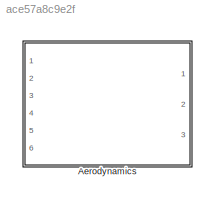
MODEL slx_ace57a8c9e2f
KIND library
CONFIG AbsTol = auto
CONFIG EnableMultiTasking = off
CONFIG FixedStep = auto
CONFIG MaxStep = auto
CONFIG MinStep = auto
CONFIG RelTol = 1e-3
CONFIG SampleTimeConstraint = Unconstrained
CONFIG Solver = VariableStepAuto
CONFIG SolverName = VariableStepAuto
CONFIG StartTime = 0.0
CONFIG StopTime = 10.0
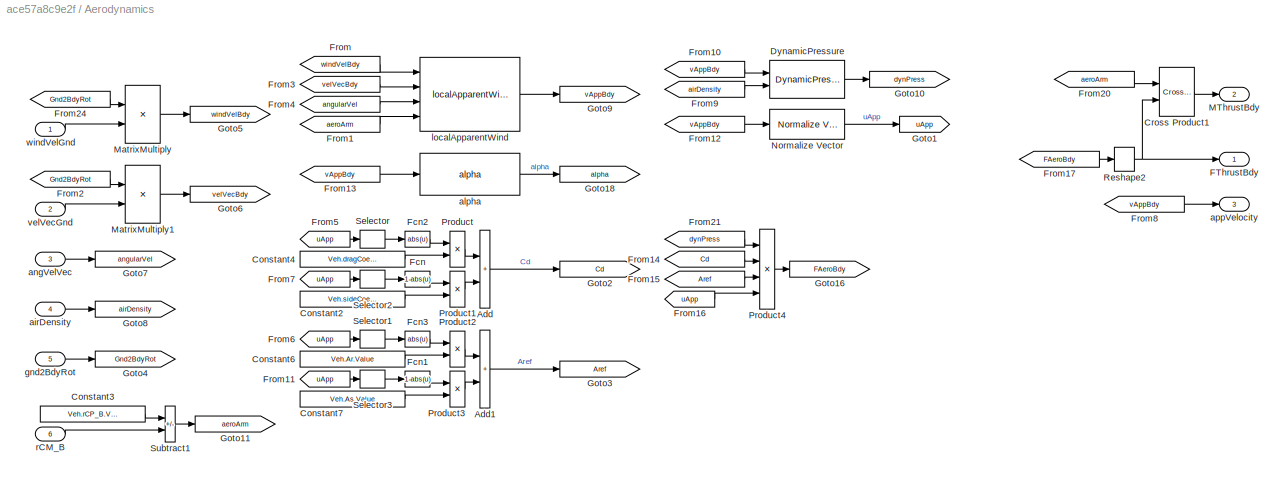
BLOCK [SubSystem] Aerodynamics
  Ports = [6, 3]
  RequestExecContextInheritance = off
BLOCK [Sum] Aerodynamics/Add
  IconShape = rectangular
  Ports = [2, 1]
BLOCK [Sum] Aerodynamics/Add1
  IconShape = rectangular
  Ports = [2, 1]
BLOCK [Constant] Aerodynamics/Constant2
  Value = Veh.sideCoef.Value
BLOCK [Constant] Aerodynamics/Constant3
  Value = Veh.rCP_B.Value
BLOCK [Constant] Aerodynamics/Constant4
  Value = Veh.dragCoef.Value
BLOCK [Constant] Aerodynamics/Constant6
  Value = Veh.Ar.Value
BLOCK [Constant] Aerodynamics/Constant7
  Value = Veh.As.Value
BLOCK [Reference] Aerodynamics/Cross Product1  REF=vrlib/Utilities/Cross Product
  Ports = [2, 1]
  SourceBlock = vrlib/Utilities/Cross Product
  SourceProductBaseCode = SL
  SourceType = Cross Product
BLOCK [Reference] Aerodynamics/DynamicPressure  REF=dynamicPressure_ul/DynamicPressure
  Ports = [2, 1]
  SourceBlock = dynamicPressure_ul/DynamicPressure
BLOCK [Outport] Aerodynamics/FThrustBdy
  VectorParamsAs1DForOutWhenUnconnected = off
BLOCK [Fcn] Aerodynamics/Fcn
  Expr = 1-abs(u)
BLOCK [Fcn] Aerodynamics/Fcn1
  Expr = 1-abs(u)
BLOCK [Fcn] Aerodynamics/Fcn2
  Expr = abs(u)
BLOCK [Fcn] Aerodynamics/Fcn3
  Expr = abs(u)
BLOCK [From] Aerodynamics/From
  GotoTag = windVelBdy
BLOCK [From] Aerodynamics/From1
  GotoTag = aeroArm
BLOCK [From] Aerodynamics/From10
  GotoTag = vAppBdy
BLOCK [From] Aerodynamics/From11
  GotoTag = uApp
BLOCK [From] Aerodynamics/From12
  GotoTag = vAppBdy
BLOCK [From] Aerodynamics/From13
  GotoTag = vAppBdy
BLOCK [From] Aerodynamics/From14
  GotoTag = Cd
BLOCK [From] Aerodynamics/From15
  GotoTag = Aref
BLOCK [From] Aerodynamics/From16
  GotoTag = uApp
BLOCK [From] Aerodynamics/From17
  GotoTag = FAeroBdy
BLOCK [From] Aerodynamics/From2
  GotoTag = Gnd2BdyRot
BLOCK [From] Aerodynamics/From20
  GotoTag = aeroArm
BLOCK [From] Aerodynamics/From21
  GotoTag = dynPress
BLOCK [From] Aerodynamics/From24
  GotoTag = Gnd2BdyRot
BLOCK [From] Aerodynamics/From3
  GotoTag = velVecBdy
BLOCK [From] Aerodynamics/From4
  GotoTag = angularVel
BLOCK [From] Aerodynamics/From5
  GotoTag = uApp
BLOCK [From] Aerodynamics/From6
  GotoTag = uApp
BLOCK [From] Aerodynamics/From7
  GotoTag = uApp
BLOCK [From] Aerodynamics/From8
  GotoTag = vAppBdy
BLOCK [From] Aerodynamics/From9
  GotoTag = airDensity
BLOCK [Goto] Aerodynamics/Goto1
  GotoTag = uApp
BLOCK [Goto] Aerodynamics/Goto10
  GotoTag = dynPress
BLOCK [Goto] Aerodynamics/Goto11
  GotoTag = aeroArm
BLOCK [Goto] Aerodynamics/Goto16
  GotoTag = FAeroBdy
BLOCK [Goto] Aerodynamics/Goto18
  GotoTag = alpha
BLOCK [Goto] Aerodynamics/Goto2
  GotoTag = Cd
BLOCK [Goto] Aerodynamics/Goto3
  GotoTag = Aref
BLOCK [Goto] Aerodynamics/Goto4
  GotoTag = Gnd2BdyRot
BLOCK [Goto] Aerodynamics/Goto5
  GotoTag = windVelBdy
BLOCK [Goto] Aerodynamics/Goto6
  GotoTag = velVecBdy
BLOCK [Goto] Aerodynamics/Goto7
  GotoTag = angularVel
BLOCK [Goto] Aerodynamics/Goto8
  GotoTag = airDensity
BLOCK [Goto] Aerodynamics/Goto9
  GotoTag = vAppBdy
BLOCK [Outport] Aerodynamics/MThrustBdy
  Port = 2
  VectorParamsAs1DForOutWhenUnconnected = off
BLOCK [Product] Aerodynamics/MatrixMultiply
  Multiplication = Matrix(*)
  Ports = [2, 1]
BLOCK [Product] Aerodynamics/MatrixMultiply1
  Multiplication = Matrix(*)
  Ports = [2, 1]
BLOCK [Reference] Aerodynamics/Normalize Vector  REF=vrlib/Utilities/Normalize Vector
  Ports = [1, 1]
  SourceBlock = vrlib/Utilities/Normalize Vector
  SourceProductBaseCode = SL
  SourceType = Normalize Vector
BLOCK [Product] Aerodynamics/Product
  Ports = [2, 1]
BLOCK [Product] Aerodynamics/Product1
  Ports = [2, 1]
BLOCK [Product] Aerodynamics/Product2
  Ports = [2, 1]
BLOCK [Product] Aerodynamics/Product3
  Ports = [2, 1]
BLOCK [Product] Aerodynamics/Product4
  Inputs = 4
  Ports = [4, 1]
BLOCK [Reshape] Aerodynamics/Reshape2
  OutputDimensionality = Column vector (2-D)
  Ports = [1, 1]
BLOCK [Selector] Aerodynamics/Selector
  IndexOptions = Index vector (dialog)
  Indices = 1
  InputPortWidth = 3
  OutputSizes = 1
  Ports = [1, 1]
BLOCK [Selector] Aerodynamics/Selector1
  IndexOptions = Index vector (dialog)
  Indices = 1
  InputPortWidth = 3
  OutputSizes = 1
  Ports = [1, 1]
BLOCK [Selector] Aerodynamics/Selector2
  IndexOptions = Index vector (dialog)
  Indices = 1
  InputPortWidth = 3
  OutputSizes = 1
  Ports = [1, 1]
BLOCK [Selector] Aerodynamics/Selector3
  IndexOptions = Index vector (dialog)
  Indices = 1
  InputPortWidth = 3
  OutputSizes = 1
  Ports = [1, 1]
BLOCK [Sum] Aerodynamics/Subtract1
  IconShape = rectangular
  Inputs = +-
  Ports = [2, 1]
BLOCK [Inport] Aerodynamics/airDensity
  Port = 4
BLOCK [Reference] Aerodynamics/alpha  REF=alpha_ul/alpha  (lib defined in slx_1c8dd407c07f)
  Ports = [1, 1]
  SourceBlock = alpha_ul/alpha
  SourceType = SubSystem
BLOCK [Inport] Aerodynamics/angVelVec
  Port = 3
BLOCK [Outport] Aerodynamics/appVelocity
  Port = 3
  VectorParamsAs1DForOutWhenUnconnected = off
BLOCK [Inport] Aerodynamics/gnd2BdyRot
  Port = 5
BLOCK [Reference] Aerodynamics/localApparentWind  REF=localApparentWind_ul/localApparentWind
  Ports = [4, 1]
  SourceBlock = localApparentWind_ul/localApparentWind
  SourceType = SubSystem
BLOCK [Inport] Aerodynamics/rCM_B
  Port = 6
BLOCK [Inport] Aerodynamics/velVecGnd
  Port = 2
BLOCK [Inport] Aerodynamics/windVelGnd
LINE Aerodynamics/Add1:1 -> Aerodynamics/Goto3:1
LINE Aerodynamics/Add:1 -> Aerodynamics/Goto2:1
LINE Aerodynamics/Constant2:1 -> Aerodynamics/Product1:2
LINE Aerodynamics/Constant3:1 -> Aerodynamics/Subtract1:1
LINE Aerodynamics/Constant4:1 -> Aerodynamics/Product:2
LINE Aerodynamics/Constant6:1 -> Aerodynamics/Product2:2
LINE Aerodynamics/Constant7:1 -> Aerodynamics/Product3:2
LINE Aerodynamics/Cross Product1:1 -> Aerodynamics/MThrustBdy:1
LINE Aerodynamics/DynamicPressure:1 -> Aerodynamics/Goto10:1
LINE Aerodynamics/Fcn1:1 -> Aerodynamics/Product3:1
LINE Aerodynamics/Fcn2:1 -> Aerodynamics/Product:1
LINE Aerodynamics/Fcn3:1 -> Aerodynamics/Product2:1
LINE Aerodynamics/Fcn:1 -> Aerodynamics/Product1:1
LINE Aerodynamics/From10:1 -> Aerodynamics/DynamicPressure:1
LINE Aerodynamics/From11:1 -> Aerodynamics/Selector3:1
LINE Aerodynamics/From12:1 -> Aerodynamics/Normalize Vector:1
LINE Aerodynamics/From13:1 -> Aerodynamics/alpha:1
LINE Aerodynamics/From14:1 -> Aerodynamics/Product4:2
LINE Aerodynamics/From15:1 -> Aerodynamics/Product4:3
LINE Aerodynamics/From16:1 -> Aerodynamics/Product4:4
LINE Aerodynamics/From17:1 -> Aerodynamics/Reshape2:1
LINE Aerodynamics/From1:1 -> Aerodynamics/localApparentWind:4
LINE Aerodynamics/From20:1 -> Aerodynamics/Cross Product1:1
LINE Aerodynamics/From21:1 -> Aerodynamics/Product4:1
LINE Aerodynamics/From24:1 -> Aerodynamics/MatrixMultiply:1
LINE Aerodynamics/From2:1 -> Aerodynamics/MatrixMultiply1:1
LINE Aerodynamics/From3:1 -> Aerodynamics/localApparentWind:2
LINE Aerodynamics/From4:1 -> Aerodynamics/localApparentWind:3
LINE Aerodynamics/From5:1 -> Aerodynamics/Selector:1
LINE Aerodynamics/From6:1 -> Aerodynamics/Selector1:1
LINE Aerodynamics/From7:1 -> Aerodynamics/Selector2:1
LINE Aerodynamics/From8:1 -> Aerodynamics/appVelocity:1
LINE Aerodynamics/From9:1 -> Aerodynamics/DynamicPressure:2
LINE Aerodynamics/From:1 -> Aerodynamics/localApparentWind:1
LINE Aerodynamics/MatrixMultiply1:1 -> Aerodynamics/Goto6:1
LINE Aerodynamics/MatrixMultiply:1 -> Aerodynamics/Goto5:1
LINE Aerodynamics/Normalize Vector:1 -> Aerodynamics/Goto1:1
LINE Aerodynamics/Product1:1 -> Aerodynamics/Add:2
LINE Aerodynamics/Product2:1 -> Aerodynamics/Add1:1
LINE Aerodynamics/Product3:1 -> Aerodynamics/Add1:2
LINE Aerodynamics/Product4:1 -> Aerodynamics/Goto16:1
LINE Aerodynamics/Product:1 -> Aerodynamics/Add:1
NET Aerodynamics/Reshape2:1 -> Aerodynamics/Cross Product1:2, Aerodynamics/FThrustBdy:1
LINE Aerodynamics/Selector1:1 -> Aerodynamics/Fcn3:1
LINE Aerodynamics/Selector2:1 -> Aerodynamics/Fcn:1
LINE Aerodynamics/Selector3:1 -> Aerodynamics/Fcn1:1
LINE Aerodynamics/Selector:1 -> Aerodynamics/Fcn2:1
LINE Aerodynamics/Subtract1:1 -> Aerodynamics/Goto11:1
LINE Aerodynamics/airDensity:1 -> Aerodynamics/Goto8:1
LINE Aerodynamics/alpha:1 -> Aerodynamics/Goto18:1
LINE Aerodynamics/angVelVec:1 -> Aerodynamics/Goto7:1
LINE Aerodynamics/gnd2BdyRot:1 -> Aerodynamics/Goto4:1
LINE Aerodynamics/localApparentWind:1 -> Aerodynamics/Goto9:1
LINE Aerodynamics/rCM_B:1 -> Aerodynamics/Subtract1:2
LINE Aerodynamics/velVecGnd:1 -> Aerodynamics/MatrixMultiply1:2
LINE Aerodynamics/windVelGnd:1 -> Aerodynamics/MatrixMultiply:2
note: NET lines group one-source signal fan-out (src -> all destinations, sorted); 1:1 wires keep LINE
